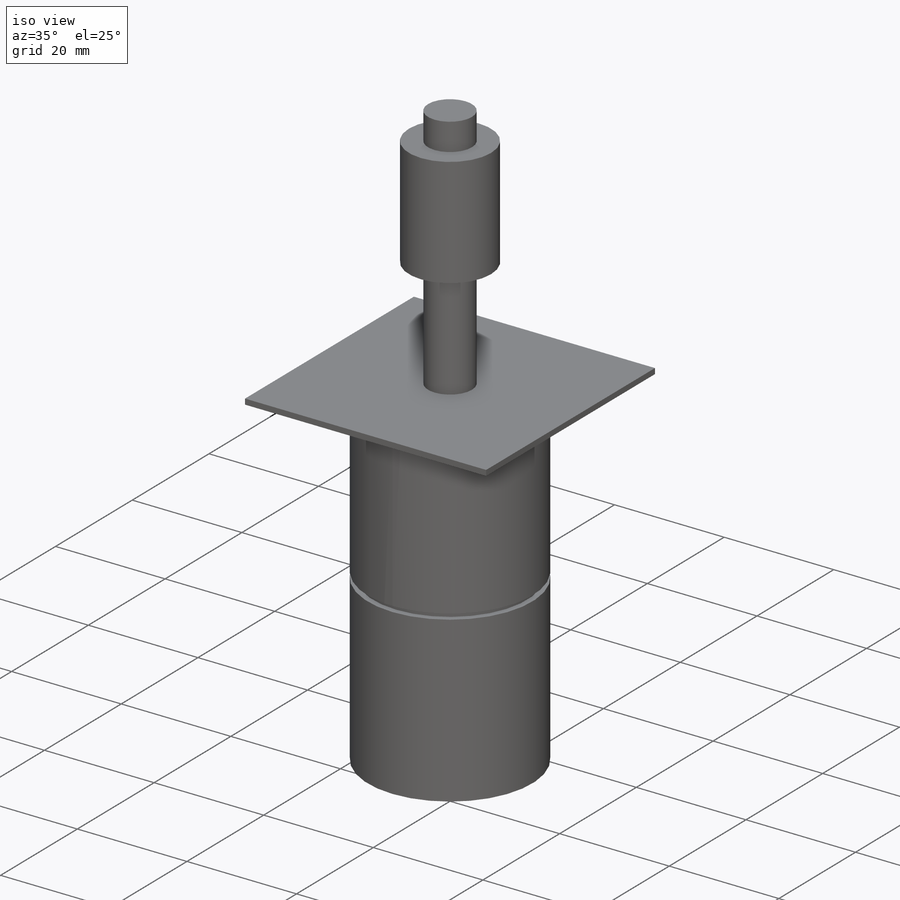
[diagram: iso view]
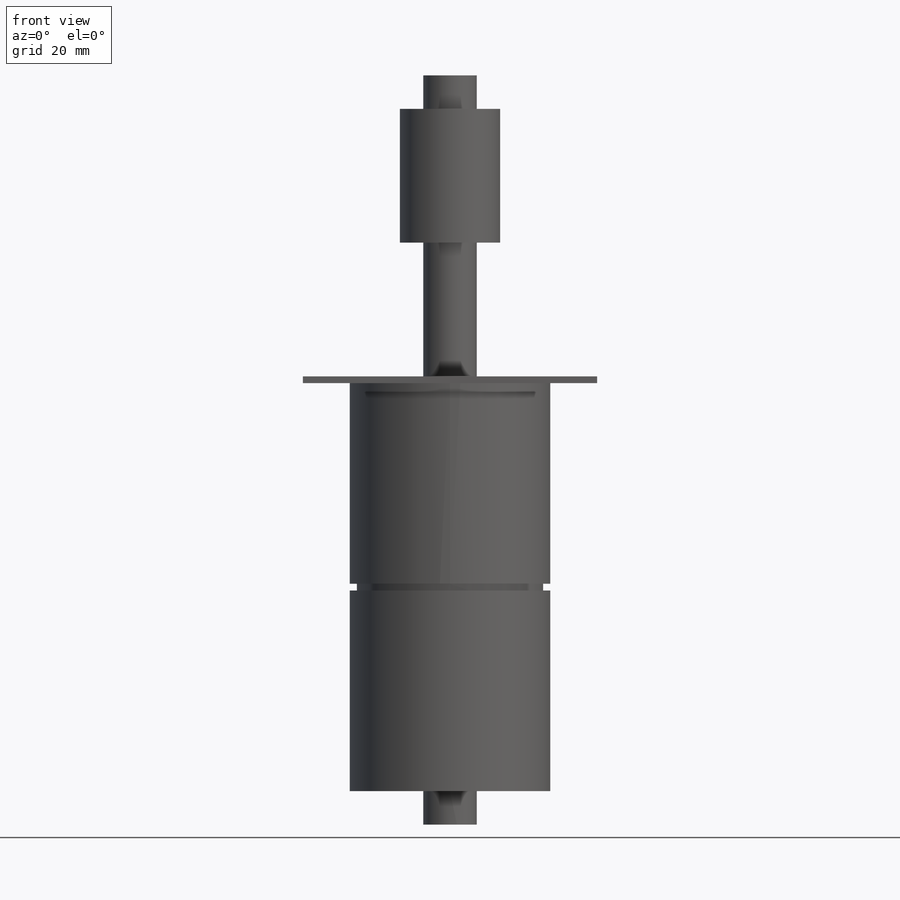
[diagram: front view]
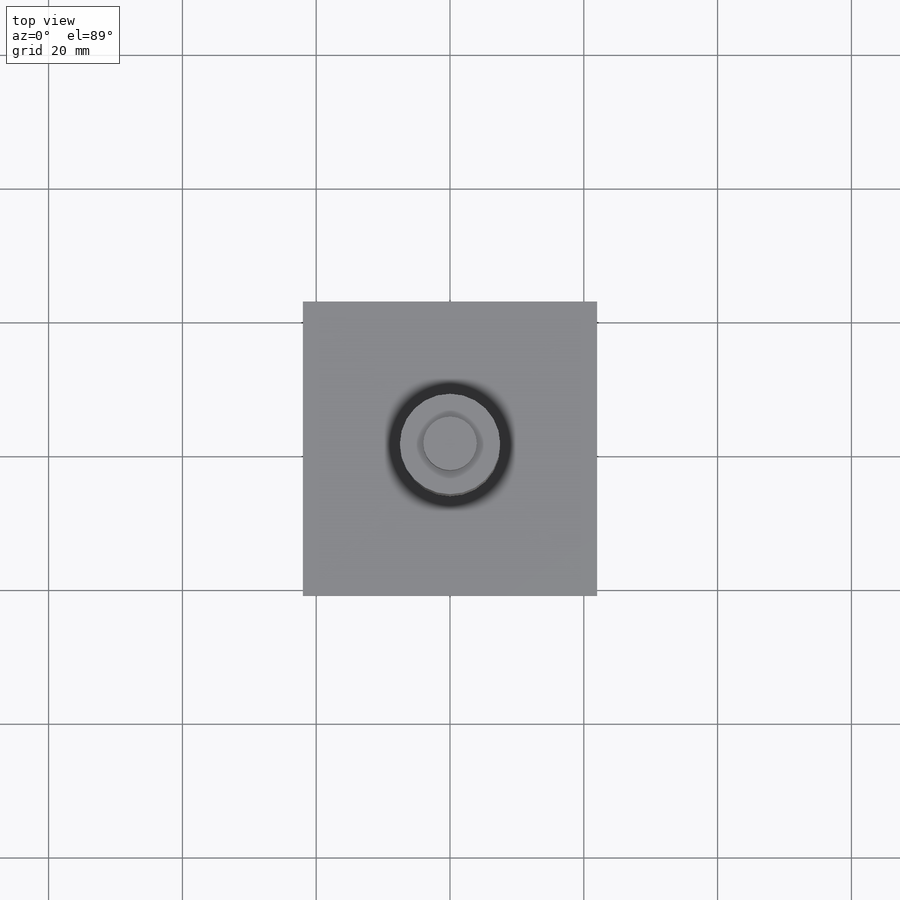
[diagram: top view]
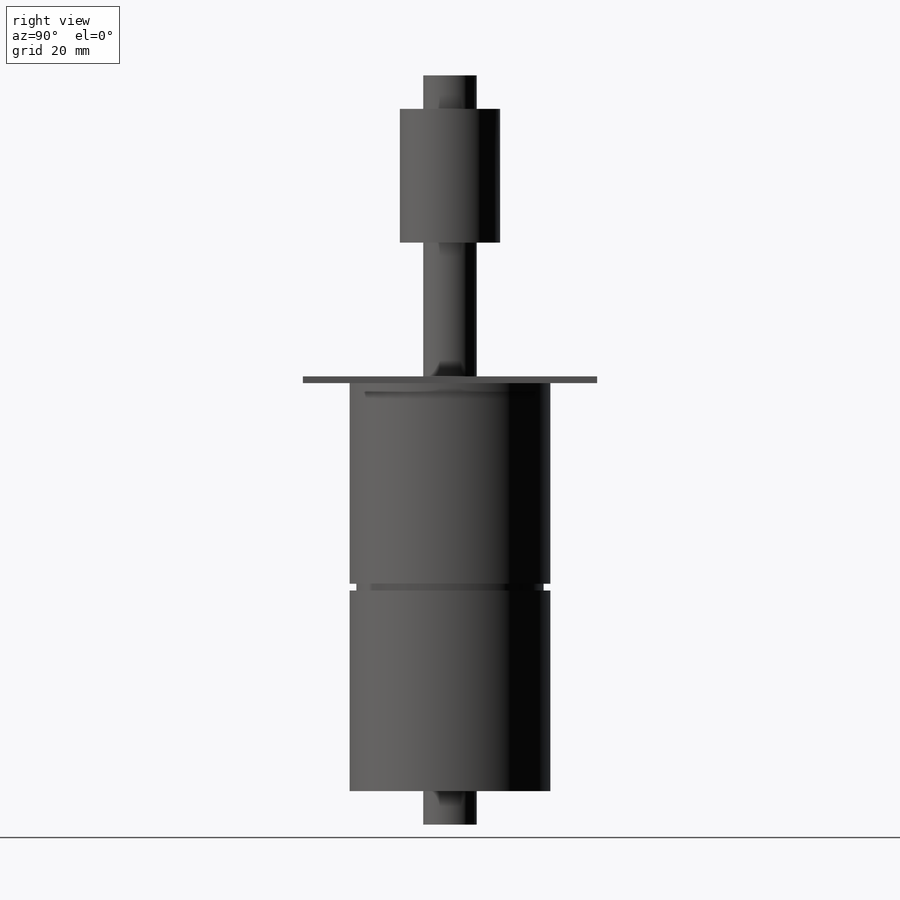
[diagram: right view]
SOLIDWORKS PART (.sldprt)
format: sldprt  version: not decoded by parser v0  size: 165,888 bytes
history: native  units: mm
features: sketch x8, extrude x8, plane x7, material x1 (+12 scaffold rows collapsed)
feature tree (36):
  scaffold x12  (default folders/planes/origin — collapsed)
  material  "Material <not specified>"
  sketch  "Sketch1"  dims[D1=20.0mm]
  extrude  "Boss-Extrude1"  Depth=30mm
  plane  "Plane1"
  sketch  "Sketch2"  dims[D1=44.0mm D2=44.0mm]
  extrude  "Boss-Extrude2"  Depth=1mm
  plane  "Plane2"
  sketch  "Sketch3"  dims[D1=~67.318098mm]
  extrude  "Boss-Extrude3"  Depth=20mm
  plane  "Plane3"
  sketch  "Sketch4"  dims[D1=15.0mm]
  extrude  "Boss-Extrude4"  Depth=20mm
  plane  "Plane4"
  sketch  "Sketch5"  dims[D1=~59.707929mm]
  extrude  "Boss-Extrude5"  Depth=5mm
  plane  "Plane5"
  sketch  "Sketch6"  dims[D1=19.0mm]
  extrude  "Boss-Extrude6"  Depth=1mm
  plane  "Plane6"
  sketch  "Sketch7"  dims[D1=20.0mm]
  extrude  "Boss-Extrude7"  Depth=30mm
  plane  "Plane7"
  sketch  "Sketch8"  dims[D1=~74.448047mm]
  extrude  "Boss-Extrude8"  Depth=5mm
decode coverage: 16 of 16 modeling features carry decoded parameters
note: ~ marks probable driven/reference dimensions
note: suppression state not decoded; provenance and decode notes live in map.json
